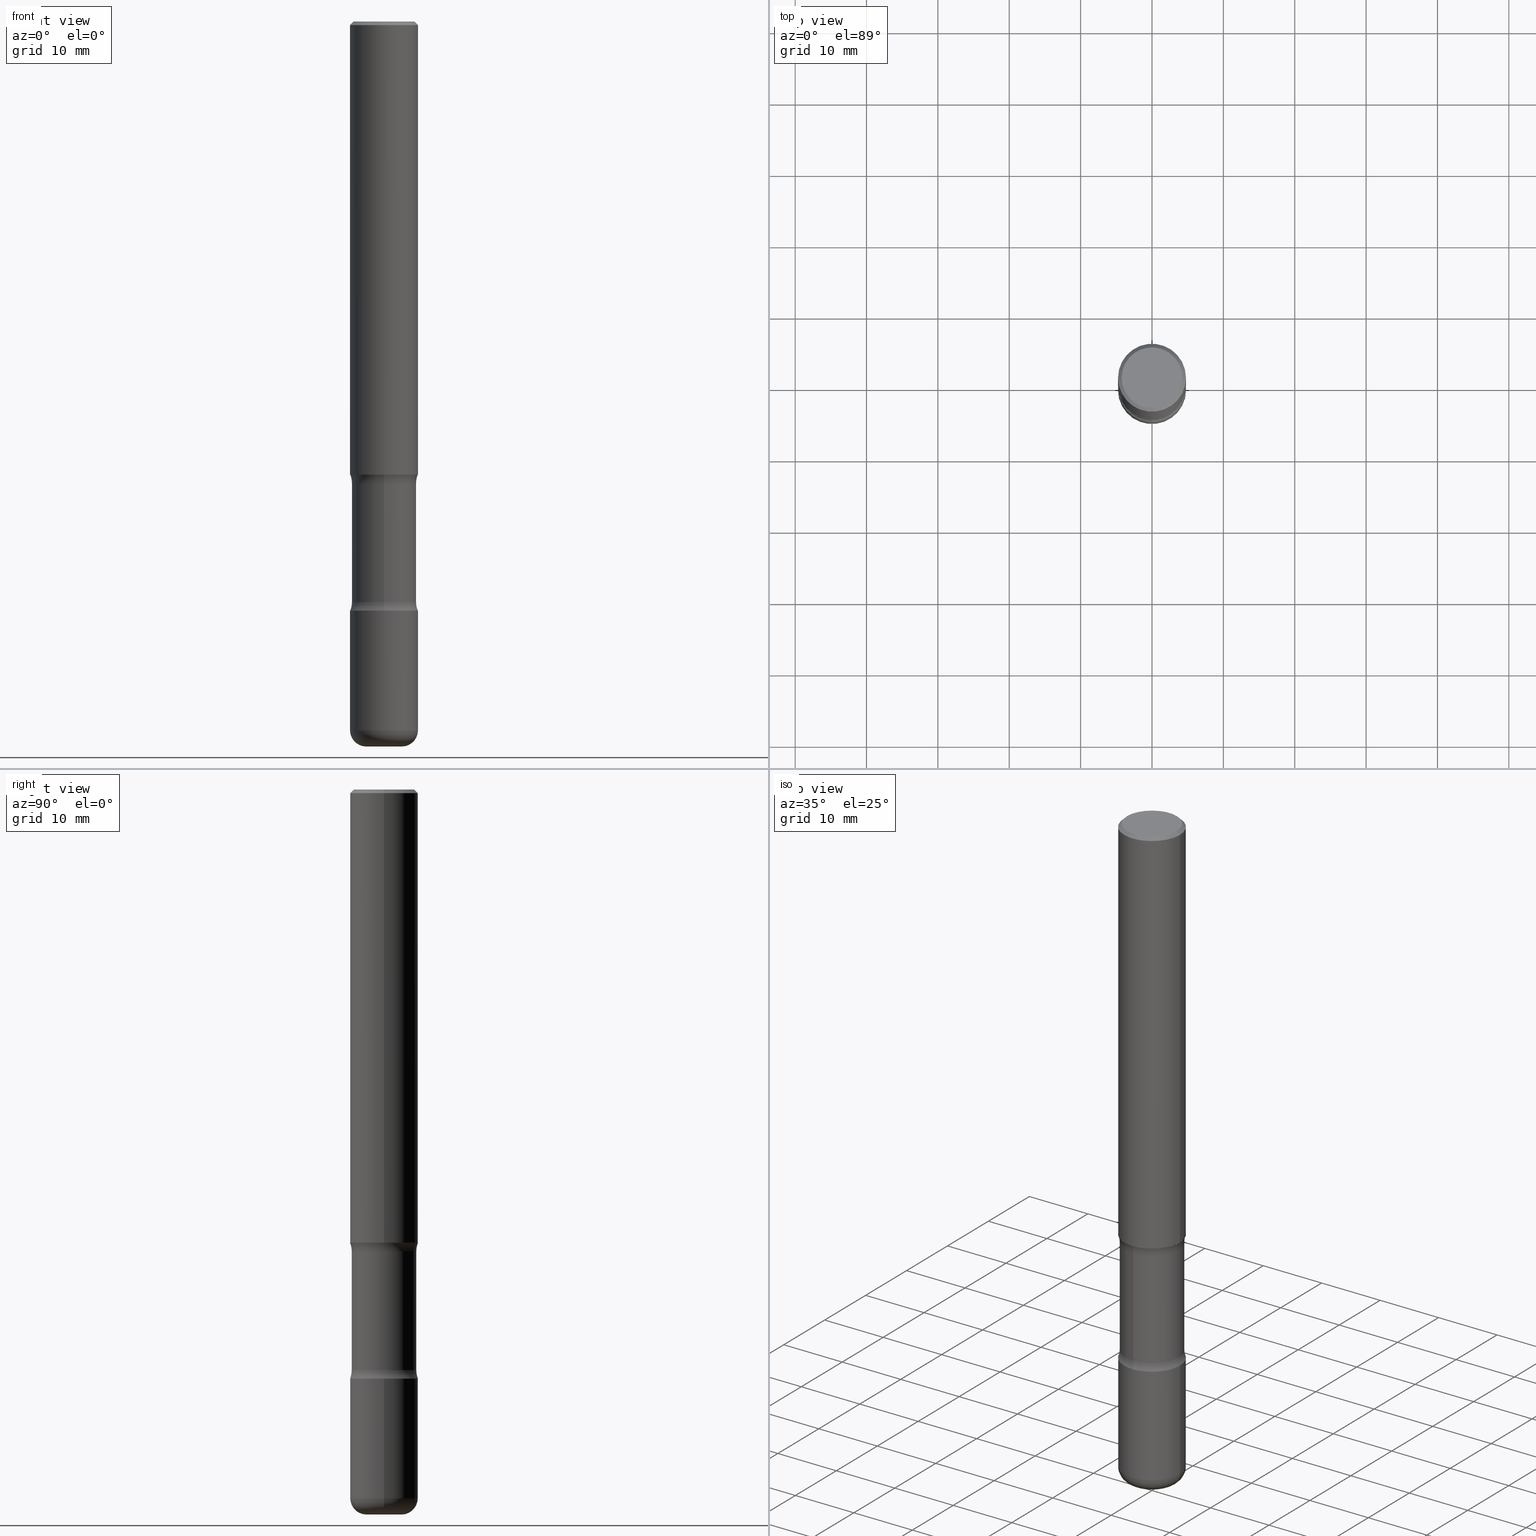
[diagram: canonical four-view strip — front | top / right | iso, engineering-drawing reading convention]
A machine part, canonical four-view strip (front | top / right | iso — engineering-drawing reading convention). The complete STEP part file that produces these views, byte-faithful:
ISO-10303-21;
HEADER;
FILE_DESCRIPTION (( 'STEP AP203' ),
    '1' );
FILE_NAME ('37853.STEP',
    '2024-03-02T00:49:22',
    ( '' ),
    ( '' ),
    'SwSTEP 2.0',
    'SolidWorks 2023',
    '' );
FILE_SCHEMA (( 'CONFIG_CONTROL_DESIGN' ));
ENDSEC;

DATA;
#1 = COORDINATED_UNIVERSAL_TIME_OFFSET ( 5, 0, .BEHIND. ) ;
#2 = DIRECTION ( 'NONE',  ( -2.445468806185136877E-29, 3.491481338843145188E-15, 1.000000000000000000 ) ) ;
#3 = FACE_OUTER_BOUND ( 'NONE', #399, .T. ) ;
#4 = EDGE_CURVE ( 'NONE', #419, #23, #536, .T. ) ;
#5 = CARTESIAN_POINT ( 'NONE',  ( -0.1874999999999999167, 1.239475875289311118E-15, -0.02000000000000006981 ) ) ;
#6 = CARTESIAN_POINT ( 'NONE',  ( 6.113672015462842613E-29, -8.728703347107864943E-15, -2.500000000000000000 ) ) ;
#7 = VECTOR ( 'NONE', #84, 39.37007874015748143 ) ;
#8 = CIRCLE ( 'NONE', #412, 0.1875000000000001110 ) ;
#9 = CYLINDRICAL_SURFACE ( 'NONE', #407, 0.1781249999999999500 ) ;
#10 = VERTEX_POINT ( 'NONE', #335 ) ;
#11 = CARTESIAN_POINT ( 'NONE',  ( -0.1875000000000000833, -1.116723556350827469E-14, -3.250000000000000444 ) ) ;
#12 = CC_DESIGN_PERSON_AND_ORGANIZATION_ASSIGNMENT ( #470, #85, ( #311 ) ) ;
#13 = CARTESIAN_POINT ( 'NONE',  ( 6.150289227201164007E-29, -9.008429421428009851E-15, -2.547495887979908780 ) ) ;
#14 = VERTEX_POINT ( 'NONE', #506 ) ;
#15 = CARTESIAN_POINT ( 'NONE',  ( -0.09750000000000015599, -1.295891286751060038E-14, -3.910000000000000142 ) ) ;
#16 = ADVANCED_FACE ( 'NONE', ( #118 ), #421, .T. ) ;
#17 = APPROVAL ( #126, 'UNSPECIFIED' ) ;
#18 = VERTEX_POINT ( 'NONE', #349 ) ;
#19 = AXIS2_PLACEMENT_3D ( 'NONE', #91, #222, #100 ) ;
#20 = TOROIDAL_SURFACE ( 'NONE', #227, 0.3031249999999999778, 0.1250000000000000278 ) ;
#21 = ORIENTED_EDGE ( 'NONE', *, *, #416, .F. ) ;
#22 = CARTESIAN_POINT ( 'NONE',  ( 6.113672015462842613E-29, -8.728703347107864943E-15, -2.500000000000000000 ) ) ;
#23 = VERTEX_POINT ( 'NONE', #447 ) ;
#24 = CARTESIAN_POINT ( 'NONE',  ( 0.1874999999999999167, -1.356173001359024677E-15, -0.02000000000000006981 ) ) ;
#25 = EDGE_LOOP ( 'NONE', ( #110, #96, #249, #454 ) ) ;
#26 = AXIS2_PLACEMENT_3D ( 'NONE', #177, #351, #524 ) ;
#27 = DIRECTION ( 'NONE',  ( 1.000000000000000000, -6.982962677686276966E-15, 0.000000000000000000 ) ) ;
#28 = CIRCLE ( 'NONE', #398, 0.1250000000000000278 ) ;
#29 = CARTESIAN_POINT ( 'NONE',  ( 1.243840226962927197E-15, 0.1781249999999909572, -2.547495887979909224 ) ) ;
#30 = VERTEX_POINT ( 'NONE', #78 ) ;
#31 = EDGE_CURVE ( 'NONE', #30, #53, #289, .T. ) ;
#32 = EDGE_CURVE ( 'NONE', #544, #59, #231, .T. ) ;
#33 = CARTESIAN_POINT ( 'NONE',  ( -2.079588455574416777E-15, -0.3031250000000111355, -3.202504112020090776 ) ) ;
#34 = CALENDAR_DATE ( 2024, 1, 3 ) ;
#35 = AXIS2_PLACEMENT_3D ( 'NONE', #394, #555, #477 ) ;
#36 = CARTESIAN_POINT ( 'NONE',  ( 0.000000000000000000, 0.000000000000000000, 0.000000000000000000 ) ) ;
#37 = APPROVAL_DATE_TIME ( #308, #17 ) ;
#38 = DIRECTION ( 'NONE',  ( 2.558681667686983511E-29, -3.329354077496592524E-15, -1.000000000000000000 ) ) ;
#39 = LINE ( 'NONE', #271, #95 ) ;
#40 = CARTESIAN_POINT ( 'NONE',  ( 0.000000000000000000, 0.000000000000000000, 0.000000000000000000 ) ) ;
#41 = DATE_AND_TIME ( #428, #513 ) ;
#42 = DIRECTION ( 'NONE',  ( 2.558681667686983511E-29, -3.329354077496592524E-15, -1.000000000000000000 ) ) ;
#43 = ADVANCED_FACE ( 'NONE', ( #56 ), #479, .F. ) ;
#44 = CALENDAR_DATE ( 2024, 1, 3 ) ;
#45 = DIRECTION ( 'NONE',  ( -2.445468806185136597E-29, 3.491481338843145583E-15, 1.000000000000000000 ) ) ;
#46 = AXIS2_PLACEMENT_3D ( 'NONE', #195, #504, #499 ) ;
#47 = APPROVAL_ROLE ( '' ) ;
#48 = DIRECTION ( 'NONE',  ( 6.982962677686266711E-15, 1.000000000000000000, -2.913971193241878794E-15 ) ) ;
#49 = DIRECTION ( 'NONE',  ( 1.000000000000000000, -6.982962677686263555E-15, 0.000000000000000000 ) ) ;
#50 = FACE_OUTER_BOUND ( 'NONE', #498, .T. ) ;
#51 = AXIS2_PLACEMENT_3D ( 'NONE', #33, #379, #547 ) ;
#52 = CIRCLE ( 'NONE', #35, 0.09750000000000016986 ) ;
#53 = VERTEX_POINT ( 'NONE', #483 ) ;
#54 = DIRECTION ( 'NONE',  ( -2.445468806185136597E-29, 3.491481338843145583E-15, 1.000000000000000000 ) ) ;
#55 = DIRECTION ( 'NONE',  ( 6.982962677686266711E-15, 1.000000000000000000, -3.067338098149349089E-15 ) ) ;
#56 = FACE_OUTER_BOUND ( 'NONE', #25, .T. ) ;
#57 = EDGE_LOOP ( 'NONE', ( #460, #542 ) ) ;
#58 = FACE_OUTER_BOUND ( 'NONE', #285, .T. ) ;
#59 = VERTEX_POINT ( 'NONE', #260 ) ;
#60 = CIRCLE ( 'NONE', #433, 0.1781249999999999223 ) ;
#61 = DIRECTION ( 'NONE',  ( -6.982962677686267499E-15, -1.000000000000000000, 0.000000000000000000 ) ) ;
#62 = DIRECTION ( 'NONE',  ( -2.445468806185136877E-29, 3.491481338843145188E-15, 1.000000000000000000 ) ) ;
#63 = ORIENTED_EDGE ( 'NONE', *, *, #276, .T. ) ;
#64 = PLANE ( 'NONE',  #224 ) ;
#65 = EDGE_LOOP ( 'NONE', ( #111, #495, #282, #287 ) ) ;
#66 = VECTOR ( 'NONE', #62, 39.37007874015748143 ) ;
#67 = AXIS2_PLACEMENT_3D ( 'NONE', #165, #83, #420 ) ;
#68 = VERTEX_POINT ( 'NONE', #440 ) ;
#69 = EDGE_CURVE ( 'NONE', #18, #14, #443, .T. ) ;
#70 = CARTESIAN_POINT ( 'NONE',  ( 4.890937612370289799E-31, -6.982962677686315028E-17, -0.02000000000000006981 ) ) ;
#71 = VERTEX_POINT ( 'NONE', #427 ) ;
#72 = VERTEX_POINT ( 'NONE', #93 ) ;
#73 = DESIGN_CONTEXT ( 'detailed design', #161, 'design' ) ;
#74 = APPLICATION_PROTOCOL_DEFINITION ( 'international standard', 'config_control_design', 1994, #161 ) ;
#75 = DIRECTION ( 'NONE',  ( 1.000000000000000000, -6.982962677686271444E-15, 4.883557194083115143E-29 ) ) ;
#76 = AXIS2_PLACEMENT_3D ( 'NONE', #70, #162, #410 ) ;
#77 = AXIS2_PLACEMENT_3D ( 'NONE', #40, #82, #119 ) ;
#78 = CARTESIAN_POINT ( 'NONE',  ( -0.1674999999999998990, 1.204561061900880061E-15, -8.301862719484106184E-30 ) ) ;
#79 = EDGE_CURVE ( 'NONE', #71, #23, #39, .T. ) ;
#80 = PERSON_AND_ORGANIZATION ( #409, #301 ) ;
#81 = CARTESIAN_POINT ( 'NONE',  ( 6.028762369336457147E-29, -8.850298793117778356E-15, -2.500000000000000000 ) ) ;
#82 = DIRECTION ( 'NONE',  ( -2.445468806185136597E-29, 3.491481338843145583E-15, 1.000000000000000000 ) ) ;
#83 = DIRECTION ( 'NONE',  ( 0.000000000000000000, 0.000000000000000000, 1.000000000000000000 ) ) ;
#84 = DIRECTION ( 'NONE',  ( 2.558681667686983511E-29, -3.329354077496592524E-15, -1.000000000000000000 ) ) ;
#85 = PERSON_AND_ORGANIZATION_ROLE ( 'classification_officer' ) ;
#86 = CARTESIAN_POINT ( 'NONE',  ( 7.831623907624765469E-29, -1.118148334468659010E-14, -3.202504112020091664 ) ) ;
#87 = AXIS2_PLACEMENT_3D ( 'NONE', #13, #352, #223 ) ;
#88 = AXIS2_PLACEMENT_3D ( 'NONE', #466, #45, #216 ) ;
#89 = DIRECTION ( 'NONE',  ( -6.982962677686267499E-15, -1.000000000000000000, 0.000000000000000000 ) ) ;
#90 = CARTESIAN_POINT ( 'NONE',  ( 9.561783032183883600E-29, -1.365169203487670064E-14, -3.910000000000000142 ) ) ;
#91 = CARTESIAN_POINT ( 'NONE',  ( 0.000000000000000000, 0.000000000000000000, 0.000000000000000000 ) ) ;
#92 = DIRECTION ( 'NONE',  ( 1.000000000000000000, -6.982962677686265922E-15, 4.876176775795935793E-29 ) ) ;
#93 = CARTESIAN_POINT ( 'NONE',  ( 0.09750000000000016986, -1.464676421644699712E-14, -4.000000000000000888 ) ) ;
#94 = CC_DESIGN_PERSON_AND_ORGANIZATION_ASSIGNMENT ( #168, #211, ( #208 ) ) ;
#95 = VECTOR ( 'NONE', #180, 39.37007874015748143 ) ;
#96 = ORIENTED_EDGE ( 'NONE', *, *, #139, .F. ) ;
#97 = APPROVAL_PERSON_ORGANIZATION ( #215, #17, #297 ) ;
#98 = FACE_OUTER_BOUND ( 'NONE', #377, .T. ) ;
#99 = EDGE_CURVE ( 'NONE', #71, #182, #557, .T. ) ;
#100 = DIRECTION ( 'NONE',  ( 1.000000000000000000, -6.982962677686265922E-15, 4.876176775795935793E-29 ) ) ;
#101 = ORIENTED_EDGE ( 'NONE', *, *, #338, .F. ) ;
#102 = CARTESIAN_POINT ( 'NONE',  ( 7.947773620101696182E-29, -1.134731435124022600E-14, -3.250000000000000444 ) ) ;
#103 = ORIENTED_EDGE ( 'NONE', *, *, #139, .T. ) ;
#104 = EDGE_CURVE ( 'NONE', #14, #18, #123, .T. ) ;
#105 = ORIENTED_EDGE ( 'NONE', *, *, #113, .F. ) ;
#106 = AXIS2_PLACEMENT_3D ( 'NONE', #170, #172, #508 ) ;
#107 = LENGTH_MEASURE_WITH_UNIT ( LENGTH_MEASURE( 0.02539999999999999897 ), #363 );
#108 = LINE ( 'NONE', #24, #546 ) ;
#109 = DIRECTION ( 'NONE',  ( 2.558681667686982950E-29, -3.329354077496592524E-15, -1.000000000000000000 ) ) ;
#110 = ORIENTED_EDGE ( 'NONE', *, *, #276, .F. ) ;
#111 = ORIENTED_EDGE ( 'NONE', *, *, #391, .T. ) ;
#112 = VECTOR ( 'NONE', #385, 39.37007874015748143 ) ;
#113 = EDGE_CURVE ( 'NONE', #59, #496, #142, .T. ) ;
#114 = CARTESIAN_POINT ( 'NONE',  ( 9.561783032183883600E-29, -1.365169203487670064E-14, -3.910000000000000142 ) ) ;
#115 = CIRCLE ( 'NONE', #248, 0.1874999999999999167 ) ;
#116 = ORIENTED_EDGE ( 'NONE', *, *, #391, .F. ) ;
#117 = CARTESIAN_POINT ( 'NONE',  ( 1.169646248512448806E-15, 0.1674999999999998990, -5.848231242562264739E-16 ) ) ;
#118 = FACE_OUTER_BOUND ( 'NONE', #190, .T. ) ;
#119 = DIRECTION ( 'NONE',  ( 1.000000000000000000, -6.982962677686266711E-15, 4.876176775795935793E-29 ) ) ;
#120 = DIRECTION ( 'NONE',  ( 1.000000000000000000, -6.982962677686265922E-15, 4.876176775795935793E-29 ) ) ;
#121 = PERSON_AND_ORGANIZATION_ROLE ( 'creator' ) ;
#122 = FACE_OUTER_BOUND ( 'NONE', #57, .T. ) ;
#123 = CIRCLE ( 'NONE', #186, 0.1875000000000001110 ) ;
#124 =( GEOMETRIC_REPRESENTATION_CONTEXT ( 3 ) GLOBAL_UNCERTAINTY_ASSIGNED_CONTEXT ( ( #200 ) ) GLOBAL_UNIT_ASSIGNED_CONTEXT ( ( #392, #554, #474 ) ) REPRESENTATION_CONTEXT ( 'NONE', 'WORKASPACE' ) );
#125 = CARTESIAN_POINT ( 'NONE',  ( 7.947773620101696182E-29, -1.134731435124022600E-14, -3.250000000000000444 ) ) ;
#126 = APPROVAL_STATUS ( 'not_yet_approved' ) ;
#127 = DIRECTION ( 'NONE',  ( -2.558681667686982950E-29, 3.329354077496592524E-15, 1.000000000000000000 ) ) ;
#128 = ADVANCED_FACE ( 'NONE', ( #529 ), #527, .T. ) ;
#129 = CALENDAR_DATE ( 2024, 1, 3 ) ;
#130 = DIRECTION ( 'NONE',  ( -2.445468806185136597E-29, 3.491481338843145583E-15, 1.000000000000000000 ) ) ;
#131 = DIRECTION ( 'NONE',  ( 1.000000000000000000, -6.982962677686263555E-15, 0.000000000000000000 ) ) ;
#132 = VECTOR ( 'NONE', #2, 39.37007874015748143 ) ;
#133 = CIRCLE ( 'NONE', #274, 0.1875000000000001388 ) ;
#134 = CARTESIAN_POINT ( 'NONE',  ( -5.870549456998649961E-29, -3.638108838031011224E-14, -4.000000000000000000 ) ) ;
#135 = DIRECTION ( 'NONE',  ( 6.982962677686266711E-15, 1.000000000000000000, -2.913971193241879583E-15 ) ) ;
#136 = DIRECTION ( 'NONE',  ( 6.982962677686266711E-15, 1.000000000000000000, -3.067338098149349089E-15 ) ) ;
#137 = APPROVAL ( #345, 'UNSPECIFIED' ) ;
#138 = ORIENTED_EDGE ( 'NONE', *, *, #286, .T. ) ;
#139 = EDGE_CURVE ( 'NONE', #182, #71, #257, .T. ) ;
#140 = DIRECTION ( 'NONE',  ( 1.000000000000000000, -6.982962677686269077E-15, 0.000000000000000000 ) ) ;
#141 = CARTESIAN_POINT ( 'NONE',  ( 6.150289227201164007E-29, -9.008429421428009851E-15, -2.547495887979908780 ) ) ;
#142 = CIRCLE ( 'NONE', #26, 0.1875000000000000833 ) ;
#143 = ORIENTED_EDGE ( 'NONE', *, *, #362, .F. ) ;
#144 = ORIENTED_EDGE ( 'NONE', *, *, #473, .T. ) ;
#145 = EDGE_CURVE ( 'NONE', #10, #68, #468, .T. ) ;
#146 = EDGE_CURVE ( 'NONE', #509, #192, #310, .T. ) ;
#147 = ORIENTED_EDGE ( 'NONE', *, *, #375, .F. ) ;
#148 = CLOSED_SHELL ( 'NONE', ( #478, #203, #516, #277, #539, #16 ) ) ;
#149 = ORIENTED_EDGE ( 'NONE', *, *, #386, .T. ) ;
#150 = AXIS2_PLACEMENT_3D ( 'NONE', #471, #127, #560 ) ;
#151 = CONICAL_SURFACE ( 'NONE', #76, 0.1874999999999999167, 0.7853981633974472798 ) ;
#152 = PRODUCT_RELATED_PRODUCT_CATEGORY ( 'detail', '', ( #198 ) ) ;
#153 = CC_DESIGN_SECURITY_CLASSIFICATION ( #311, ( #208 ) ) ;
#154 = CARTESIAN_POINT ( 'NONE',  ( 6.113672015462842613E-29, -8.728703347107864943E-15, -2.500000000000000000 ) ) ;
#155 = EDGE_LOOP ( 'NONE', ( #528, #159, #318, #442 ) ) ;
#156 = ORIENTED_EDGE ( 'NONE', *, *, #4, .T. ) ;
#157 = ADVANCED_FACE ( 'NONE', ( #279 ), #9, .T. ) ;
#158 = DIRECTION ( 'NONE',  ( -2.445468806185136597E-29, 3.491481338843145583E-15, 1.000000000000000000 ) ) ;
#159 = ORIENTED_EDGE ( 'NONE', *, *, #432, .T. ) ;
#160 = CIRCLE ( 'NONE', #537, 0.1875000000000000833 ) ;
#161 = APPLICATION_CONTEXT ( 'configuration controlled 3d designs of mechanical parts and assemblies' ) ;
#162 = DIRECTION ( 'NONE',  ( 2.445468806185136597E-29, -3.491481338843145583E-15, -1.000000000000000000 ) ) ;
#163 = CC_DESIGN_APPROVAL ( #369, ( #311 ) ) ;
#164 = EDGE_LOOP ( 'NONE', ( #228, #138, #144, #101 ) ) ;
#165 = CARTESIAN_POINT ( 'NONE',  ( 0.000000000000000000, 0.000000000000000000, 0.000000000000000000 ) ) ;
#166 = DIRECTION ( 'NONE',  ( -6.982962677686266711E-15, -1.000000000000000000, 3.491481338843145583E-15 ) ) ;
#167 = ORIENTED_EDGE ( 'NONE', *, *, #362, .T. ) ;
#168 = PERSON_AND_ORGANIZATION ( #409, #301 ) ;
#169 = CARTESIAN_POINT ( 'NONE',  ( 1.309305502066236145E-15, 0.1874999999999913125, -2.500000000000000444 ) ) ;
#170 = CARTESIAN_POINT ( 'NONE',  ( 7.826246762236988201E-29, -1.118918372292999451E-14, -3.202504112020091664 ) ) ;
#171 = CIRCLE ( 'NONE', #487, 0.1674999999999998990 ) ;
#172 = DIRECTION ( 'NONE',  ( 2.558681667686983511E-29, -3.329354077496592524E-15, -1.000000000000000000 ) ) ;
#173 = ADVANCED_FACE ( 'NONE', ( #372 ), #64, .F. ) ;
#174 = FACE_OUTER_BOUND ( 'NONE', #330, .T. ) ;
#175 = DIRECTION ( 'NONE',  ( -2.445468806185136877E-29, 3.491481338843145188E-15, 1.000000000000000000 ) ) ;
#176 = DIRECTION ( 'NONE',  ( 1.000000000000000000, -6.982962677686269077E-15, 0.000000000000000000 ) ) ;
#177 = CARTESIAN_POINT ( 'NONE',  ( 7.947773620101696182E-29, -1.134731435124022600E-14, -3.250000000000000444 ) ) ;
#178 = AXIS2_PLACEMENT_3D ( 'NONE', #307, #130, #176 ) ;
#179 = DIRECTION ( 'NONE',  ( 2.558681667686983511E-29, -3.329354077496592524E-15, -1.000000000000000000 ) ) ;
#180 = DIRECTION ( 'NONE',  ( 2.558681667686983511E-29, -3.329354077496592524E-15, -1.000000000000000000 ) ) ;
#181 = EDGE_CURVE ( 'NONE', #53, #30, #171, .T. ) ;
#182 = VERTEX_POINT ( 'NONE', #29 ) ;
#183 = DIRECTION ( 'NONE',  ( 6.982962677686266711E-15, 1.000000000000000000, -2.913971193241878794E-15 ) ) ;
#184 = DIRECTION ( 'NONE',  ( -2.445468806185136597E-29, 3.491481338843145583E-15, 1.000000000000000000 ) ) ;
#185 = ORIENTED_EDGE ( 'NONE', *, *, #401, .F. ) ;
#186 = AXIS2_PLACEMENT_3D ( 'NONE', #6, #220, #131 ) ;
#187 = ORIENTED_EDGE ( 'NONE', *, *, #476, .F. ) ;
#188 = EDGE_LOOP ( 'NONE', ( #116, #196 ) ) ;
#189 = DIRECTION ( 'NONE',  ( -1.000000000000000000, 6.982962677686265922E-15, -4.883557194083112901E-29 ) ) ;
#190 = EDGE_LOOP ( 'NONE', ( #143, #374, #532, #550 ) ) ;
#191 = FACE_OUTER_BOUND ( 'NONE', #164, .T. ) ;
#192 = VERTEX_POINT ( 'NONE', #452 ) ;
#193 = AXIS2_PLACEMENT_3D ( 'NONE', #134, #485, #356 ) ;
#194 = PRODUCT_DEFINITION_SHAPE ( 'NONE', 'NONE',  #365 ) ;
#195 = CARTESIAN_POINT ( 'NONE',  ( -2.079588455574433343E-15, -0.3031250000000089706, -2.547495887979907891 ) ) ;
#196 = ORIENTED_EDGE ( 'NONE', *, *, #432, .F. ) ;
#197 = LINE ( 'NONE', #325, #66 ) ;
#198 = PRODUCT ( '37853', '37853', '', ( #518 ) ) ;
#199 = ORIENTED_EDGE ( 'NONE', *, *, #79, .F. ) ;
#200 = UNCERTAINTY_MEASURE_WITH_UNIT (LENGTH_MEASURE( 1.000000000000000082E-05 ), #392, 'distance_accuracy_value', 'NONE');
#201 = EDGE_LOOP ( 'NONE', ( #462, #294, #411, #315 ) ) ;
#202 = FACE_OUTER_BOUND ( 'NONE', #535, .T. ) ;
#203 = ADVANCED_FACE ( 'NONE', ( #191 ), #151, .T. ) ;
#204 = EDGE_CURVE ( 'NONE', #192, #496, #197, .T. ) ;
#205 = AXIS2_PLACEMENT_3D ( 'NONE', #387, #221, #258 ) ;
#206 = APPROVAL_DATE_TIME ( #254, #369 ) ;
#207 = CARTESIAN_POINT ( 'NONE',  ( 0.000000000000000000, 0.000000000000000000, 0.000000000000000000 ) ) ;
#208 = PRODUCT_DEFINITION_FORMATION_WITH_SPECIFIED_SOURCE ( 'ANY', '', #198, .NOT_KNOWN. ) ;
#209 = DIRECTION ( 'NONE',  ( -2.445468806185136597E-29, 3.491481338843145583E-15, 1.000000000000000000 ) ) ;
#210 = DIRECTION ( 'NONE',  ( -2.445468806185136597E-29, 3.491481338843145583E-15, 1.000000000000000000 ) ) ;
#211 = PERSON_AND_ORGANIZATION_ROLE ( 'creator' ) ;
#212 = LINE ( 'NONE', #511, #132 ) ;
#213 = APPROVAL_STATUS ( 'not_yet_approved' ) ;
#214 = CARTESIAN_POINT ( 'NONE',  ( 0.1874999999999999167, -1.356173001359024677E-15, -0.02000000000000006981 ) ) ;
#215 = PERSON_AND_ORGANIZATION ( #409, #301 ) ;
#216 = DIRECTION ( 'NONE',  ( 1.000000000000000000, -6.982962677686265922E-15, 0.000000000000000000 ) ) ;
#217 = CIRCLE ( 'NONE', #46, 0.1250000000000000278 ) ;
#218 = CC_DESIGN_APPROVAL ( #17, ( #208 ) ) ;
#219 = CARTESIAN_POINT ( 'NONE',  ( 4.890937612370289799E-31, -6.982962677686315028E-17, -0.02000000000000006981 ) ) ;
#220 = DIRECTION ( 'NONE',  ( -2.445468806185136597E-29, 3.491481338843145583E-15, 1.000000000000000000 ) ) ;
#221 = DIRECTION ( 'NONE',  ( 2.558681667686983511E-29, -3.329354077496592524E-15, -1.000000000000000000 ) ) ;
#222 = DIRECTION ( 'NONE',  ( -2.445468806185136597E-29, 3.491481338843145583E-15, 1.000000000000000000 ) ) ;
#223 = DIRECTION ( 'NONE',  ( 6.982962677686266711E-15, 1.000000000000000000, -3.067338098149349089E-15 ) ) ;
#224 = AXIS2_PLACEMENT_3D ( 'NONE', #154, #109, #545 ) ;
#225 = DIRECTION ( 'NONE',  ( -2.445468806185136597E-29, 3.491481338843145583E-15, 1.000000000000000000 ) ) ;
#226 = LOCAL_TIME ( 19, 49, 22.00000000000000000, #436 ) ;
#227 = AXIS2_PLACEMENT_3D ( 'NONE', #235, #405, #439 ) ;
#228 = ORIENTED_EDGE ( 'NONE', *, *, #181, .F. ) ;
#229 = FACE_OUTER_BOUND ( 'NONE', #275, .T. ) ;
#230 = CC_DESIGN_DATE_AND_TIME_ASSIGNMENT ( #384, #559, ( #365 ) ) ;
#231 = LINE ( 'NONE', #400, #512 ) ;
#232 = ORIENTED_EDGE ( 'NONE', *, *, #145, .F. ) ;
#233 = CC_DESIGN_DATE_AND_TIME_ASSIGNMENT ( #41, #264, ( #311 ) ) ;
#234 = ORIENTED_EDGE ( 'NONE', *, *, #31, .T. ) ;
#235 = CARTESIAN_POINT ( 'NONE',  ( 6.158285255761511137E-29, -8.996978653423909512E-15, -2.547495887979908780 ) ) ;
#236 = EDGE_CURVE ( 'NONE', #496, #59, #160, .T. ) ;
#237 = DIRECTION ( 'NONE',  ( 2.558681667686983511E-29, -3.329354077496592524E-15, -1.000000000000000000 ) ) ;
#238 = AXIS2_PLACEMENT_3D ( 'NONE', #114, #334, #337 ) ;
#239 = EDGE_LOOP ( 'NONE', ( #234, #364 ) ) ;
#240 = CONICAL_SURFACE ( 'NONE', #408, 0.1874999999999999167, 0.7853981633974472798 ) ;
#241 = EDGE_LOOP ( 'NONE', ( #246, #417 ) ) ;
#242 = DIRECTION ( 'NONE',  ( -1.000000000000000000, 6.982962677686265922E-15, -4.876176775795935793E-29 ) ) ;
#243 = ORIENTED_EDGE ( 'NONE', *, *, #464, .T. ) ;
#244 = CC_DESIGN_PERSON_AND_ORGANIZATION_ASSIGNMENT ( #507, #389, ( #198 ) ) ;
#245 = DIRECTION ( 'NONE',  ( -2.445468806185136597E-29, 3.491481338843145583E-15, 1.000000000000000000 ) ) ;
#246 = ORIENTED_EDGE ( 'NONE', *, *, #113, .T. ) ;
#247 = AXIS2_PLACEMENT_3D ( 'NONE', #406, #336, #89 ) ;
#248 = AXIS2_PLACEMENT_3D ( 'NONE', #434, #210, #300 ) ;
#249 = ORIENTED_EDGE ( 'NONE', *, *, #556, .T. ) ;
#250 = ORIENTED_EDGE ( 'NONE', *, *, #104, .T. ) ;
#251 = ADVANCED_FACE ( 'NONE', ( #541 ), #543, .F. ) ;
#252 = CYLINDRICAL_SURFACE ( 'NONE', #538, 0.1875000000000001110 ) ;
#253 = MANIFOLD_SOLID_BREP ( 'Body-Move/Copy2[1]', #467 ) ;
#254 = DATE_AND_TIME ( #34, #332 ) ;
#255 = CARTESIAN_POINT ( 'NONE',  ( 7.947773620101696182E-29, -1.134731435124022600E-14, -3.250000000000000444 ) ) ;
#256 = EDGE_LOOP ( 'NONE', ( #103, #368, #185, #21 ) ) ;
#257 = CIRCLE ( 'NONE', #321, 0.1781249999999999500 ) ;
#258 = DIRECTION ( 'NONE',  ( 6.982962677686266711E-15, 1.000000000000000000, -3.329354077496592130E-15 ) ) ;
#259 = CIRCLE ( 'NONE', #381, 0.1875000000000000833 ) ;
#260 = CARTESIAN_POINT ( 'NONE',  ( 0.1875000000000000833, -1.265661985330640259E-14, -3.250000000000000444 ) ) ;
#261 = FACE_OUTER_BOUND ( 'NONE', #201, .T. ) ;
#262 = CARTESIAN_POINT ( 'NONE',  ( -1.286343374582083282E-15, -0.1875000000000114075, -3.250000000000000000 ) ) ;
#263 = EDGE_CURVE ( 'NONE', #72, #544, #530, .T. ) ;
#264 = DATE_TIME_ROLE ( 'classification_date' ) ;
#265 = DIRECTION ( 'NONE',  ( -2.445468806185136597E-29, 3.491481338843145583E-15, 1.000000000000000000 ) ) ;
#266 = VECTOR ( 'NONE', #515, 39.37007874015748143 ) ;
#267 = CC_DESIGN_APPROVAL ( #137, ( #365 ) ) ;
#268 = LINE ( 'NONE', #5, #266 ) ;
#269 = DIRECTION ( 'NONE',  ( 2.558681667686983511E-29, -3.329354077496592524E-15, -1.000000000000000000 ) ) ;
#270 = ADVANCED_FACE ( 'NONE', ( #415 ), #455, .T. ) ;
#271 = CARTESIAN_POINT ( 'NONE',  ( -1.222026205852954821E-15, -0.1781250000000138001, -3.999999999999999556 ) ) ;
#272 = DIRECTION ( 'NONE',  ( 6.982962677686266711E-15, 1.000000000000000000, -3.067338098149349089E-15 ) ) ;
#273 = AXIS2_PLACEMENT_3D ( 'NONE', #404, #184, #49 ) ;
#274 = AXIS2_PLACEMENT_3D ( 'NONE', #312, #526, #183 ) ;
#275 = EDGE_LOOP ( 'NONE', ( #457, #491, #453, #449 ) ) ;
#276 = EDGE_CURVE ( 'NONE', #71, #502, #217, .T. ) ;
#277 = ADVANCED_FACE ( 'NONE', ( #293 ), #459, .F. ) ;
#278 = ORIENTED_EDGE ( 'NONE', *, *, #32, .F. ) ;
#279 = FACE_OUTER_BOUND ( 'NONE', #256, .T. ) ;
#280 = ORIENTED_EDGE ( 'NONE', *, *, #375, .T. ) ;
#281 = AXIS2_PLACEMENT_3D ( 'NONE', #329, #166, #27 ) ;
#282 = ORIENTED_EDGE ( 'NONE', *, *, #464, .F. ) ;
#283 = AXIS2_PLACEMENT_3D ( 'NONE', #219, #431, #393 ) ;
#284 = DIRECTION ( 'NONE',  ( 1.000000000000000000, -6.982962677686265922E-15, 4.876176775795935793E-29 ) ) ;
#285 = EDGE_LOOP ( 'NONE', ( #383, #149, #327, #448 ) ) ;
#286 = EDGE_CURVE ( 'NONE', #53, #322, #108, .T. ) ;
#287 = ORIENTED_EDGE ( 'NONE', *, *, #263, .F. ) ;
#288 = DIRECTION ( 'NONE',  ( 2.438088387897960049E-29, -3.491481338843145188E-15, -1.000000000000000000 ) ) ;
#289 = CIRCLE ( 'NONE', #19, 0.1674999999999998990 ) ;
#290 = ORIENTED_EDGE ( 'NONE', *, *, #328, .F. ) ;
#291 = AXIS2_PLACEMENT_3D ( 'NONE', #36, #209, #120 ) ;
#292 = DIRECTION ( 'NONE',  ( -2.438088387897960049E-29, 3.491481338843145188E-15, 1.000000000000000000 ) ) ;
#293 = FACE_OUTER_BOUND ( 'NONE', #239, .T. ) ;
#294 = ORIENTED_EDGE ( 'NONE', *, *, #505, .F. ) ;
#295 = DIRECTION ( 'NONE',  ( 2.438088387897960049E-29, -3.491481338843145188E-15, -1.000000000000000000 ) ) ;
#296 = ORIENTED_EDGE ( 'NONE', *, *, #414, .F. ) ;
#297 = APPROVAL_ROLE ( '' ) ;
#298 = LINE ( 'NONE', #305, #7 ) ;
#299 = AXIS2_PLACEMENT_3D ( 'NONE', #81, #42, #48 ) ;
#300 = DIRECTION ( 'NONE',  ( 1.000000000000000000, -6.982962677686265922E-15, 0.000000000000000000 ) ) ;
#301 = ORGANIZATION ( 'UNSPECIFIED', 'UNSPECIFIED', '' ) ;
#302 = SECURITY_CLASSIFICATION_LEVEL ( 'unclassified' ) ;
#303 = LINE ( 'NONE', #429, #112 ) ;
#304 = APPROVAL_ROLE ( '' ) ;
#305 = CARTESIAN_POINT ( 'NONE',  ( 1.243840226962964471E-15, 0.1781249999999861278, -4.000000000000000888 ) ) ;
#306 = PERSON_AND_ORGANIZATION_ROLE ( 'design_supplier' ) ;
#307 = CARTESIAN_POINT ( 'NONE',  ( 9.561783032183883600E-29, -1.365169203487670064E-14, -3.910000000000000142 ) ) ;
#308 = DATE_AND_TIME ( #44, #226 ) ;
#309 = DIRECTION ( 'NONE',  ( 6.982962677686266711E-15, 1.000000000000000000, -3.329354077496592130E-15 ) ) ;
#310 = CIRCLE ( 'NONE', #341, 0.09000000000000016320 ) ;
#311 = SECURITY_CLASSIFICATION ( '', '', #302 ) ;
#312 = CARTESIAN_POINT ( 'NONE',  ( 6.028762369336457147E-29, -8.850298793117778356E-15, -2.500000000000000000 ) ) ;
#313 = DIRECTION ( 'NONE',  ( 6.982962677686266711E-15, 1.000000000000000000, -3.329354077496592130E-15 ) ) ;
#314 = CARTESIAN_POINT ( 'NONE',  ( -0.09750000000000016986, -1.279628529666649585E-14, -4.000000000000000888 ) ) ;
#315 = ORIENTED_EDGE ( 'NONE', *, *, #401, .T. ) ;
#316 = DIRECTION ( 'NONE',  ( 2.445468806185136597E-29, -3.491481338843145583E-15, -1.000000000000000000 ) ) ;
#317 = EDGE_CURVE ( 'NONE', #14, #322, #303, .T. ) ;
#318 = ORIENTED_EDGE ( 'NONE', *, *, #263, .T. ) ;
#319 = ORIENTED_EDGE ( 'NONE', *, *, #556, .F. ) ;
#320 = VERTEX_POINT ( 'NONE', #169 ) ;
#321 = AXIS2_PLACEMENT_3D ( 'NONE', #141, #489, #136 ) ;
#322 = VERTEX_POINT ( 'NONE', #214 ) ;
#323 = DIRECTION ( 'NONE',  ( 0.7071067811865467956, -7.319954787623254468E-15, -0.7071067811865482389 ) ) ;
#324 = ORIENTED_EDGE ( 'NONE', *, *, #99, .T. ) ;
#325 = CARTESIAN_POINT ( 'NONE',  ( -0.1875000000000001110, 1.332267629550188637E-15, -9.223003294227953596E-30 ) ) ;
#326 = CC_DESIGN_PERSON_AND_ORGANIZATION_ASSIGNMENT ( #551, #306, ( #208 ) ) ;
#327 = ORIENTED_EDGE ( 'NONE', *, *, #32, .T. ) ;
#328 = EDGE_CURVE ( 'NONE', #23, #68, #60, .T. ) ;
#329 = CARTESIAN_POINT ( 'NONE',  ( 0.09750000000000015599, -1.433253089595111070E-14, -3.910000000000000142 ) ) ;
#330 = EDGE_LOOP ( 'NONE', ( #199, #324, #339, #290 ) ) ;
#331 = CIRCLE ( 'NONE', #299, 0.1875000000000001388 ) ;
#332 = LOCAL_TIME ( 19, 49, 22.00000000000000000, #1 ) ;
#333 = ADVANCED_FACE ( 'NONE', ( #519 ), #397, .F. ) ;
#334 = DIRECTION ( 'NONE',  ( -2.445468806185136597E-29, 3.491481338843145583E-15, 1.000000000000000000 ) ) ;
#335 = CARTESIAN_POINT ( 'NONE',  ( 1.309305502066255275E-15, 0.1874999999999887867, -3.250000000000001332 ) ) ;
#336 = DIRECTION ( 'NONE',  ( -1.000000000000000000, 6.982962677686265922E-15, -4.883557194083112901E-29 ) ) ;
#337 = DIRECTION ( 'NONE',  ( 1.000000000000000000, -6.982962677686271444E-15, 4.883557194083115143E-29 ) ) ;
#338 = EDGE_CURVE ( 'NONE', #30, #360, #268, .T. ) ;
#339 = ORIENTED_EDGE ( 'NONE', *, *, #416, .T. ) ;
#340 = DIRECTION ( 'NONE',  ( 6.982962677686265133E-15, 1.000000000000000000, -3.067338098149349483E-15 ) ) ;
#341 = AXIS2_PLACEMENT_3D ( 'NONE', #15, #463, #553 ) ;
#342 = LOCAL_TIME ( 19, 49, 22.00000000000000000, #520 ) ;
#343 = COORDINATED_UNIVERSAL_TIME_OFFSET ( 5, 0, .BEHIND. ) ;
#344 = FACE_OUTER_BOUND ( 'NONE', #65, .T. ) ;
#345 = APPROVAL_STATUS ( 'not_yet_approved' ) ;
#346 = PLANE ( 'NONE',  #150 ) ;
#347 = PERSON_AND_ORGANIZATION ( #409, #301 ) ;
#348 = CYLINDRICAL_SURFACE ( 'NONE', #435, 0.1781249999999999500 ) ;
#349 = CARTESIAN_POINT ( 'NONE',  ( -0.1875000000000000833, -3.066998857392172722E-15, -2.500000000000000000 ) ) ;
#350 = CIRCLE ( 'NONE', #106, 0.1781249999999999223 ) ;
#351 = DIRECTION ( 'NONE',  ( -2.445468806185136597E-29, 3.491481338843145583E-15, 1.000000000000000000 ) ) ;
#352 = DIRECTION ( 'NONE',  ( 2.558681667686983511E-29, -3.329354077496592524E-15, -1.000000000000000000 ) ) ;
#353 = DIRECTION ( 'NONE',  ( 1.000000000000000000, -6.982962677686266711E-15, 4.876176775795935793E-29 ) ) ;
#354 = CARTESIAN_POINT ( 'NONE',  ( 4.890937612370289799E-31, -6.982962677686315028E-17, -0.02000000000000006981 ) ) ;
#355 = APPLICATION_CONTEXT ( 'configuration controlled 3d designs of mechanical parts and assemblies' ) ;
#356 = DIRECTION ( 'NONE',  ( -1.000000000000000000, 6.982962677686265922E-15, -4.876176775795935793E-29 ) ) ;
#357 = ADVANCED_FACE ( 'NONE', ( #344 ), #469, .T. ) ;
#358 = DIRECTION ( 'NONE',  ( -2.445468806185136597E-29, 3.491481338843145583E-15, 1.000000000000000000 ) ) ;
#359 = AXIS2_PLACEMENT_3D ( 'NONE', #117, #295, #461 ) ;
#360 = VERTEX_POINT ( 'NONE', #475 ) ;
#361 = ORIENTED_EDGE ( 'NONE', *, *, #99, .F. ) ;
#362 = EDGE_CURVE ( 'NONE', #18, #360, #212, .T. ) ;
#363 =( LENGTH_UNIT ( ) NAMED_UNIT ( * ) SI_UNIT ( $, .METRE. ) );
#364 = ORIENTED_EDGE ( 'NONE', *, *, #181, .T. ) ;
#365 = PRODUCT_DEFINITION ( 'UNKNOWN', '', #208, #73 ) ;
#366 = CIRCLE ( 'NONE', #424, 0.1875000000000000833 ) ;
#367 = CIRCLE ( 'NONE', #283, 0.1874999999999999167 ) ;
#368 = ORIENTED_EDGE ( 'NONE', *, *, #79, .T. ) ;
#369 = APPROVAL ( #213, 'UNSPECIFIED' ) ;
#370 = CC_DESIGN_PERSON_AND_ORGANIZATION_ASSIGNMENT ( #347, #121, ( #365 ) ) ;
#371 = CARTESIAN_POINT ( 'NONE',  ( 0.1875000000000002220, -1.496099753694287723E-14, -3.910000000000000142 ) ) ;
#372 = FACE_OUTER_BOUND ( 'NONE', #451, .T. ) ;
#373 = ADVANCED_FACE ( 'NONE', ( #122 ), #346, .F. ) ;
#374 = ORIENTED_EDGE ( 'NONE', *, *, #69, .T. ) ;
#375 = EDGE_CURVE ( 'NONE', #502, #320, #331, .T. ) ;
#376 = DIRECTION ( 'NONE',  ( 1.000000000000000000, -6.982962677686269866E-15, 0.000000000000000000 ) ) ;
#377 = EDGE_LOOP ( 'NONE', ( #361, #63, #280, #319 ) ) ;
#378 = ADVANCED_FACE ( 'NONE', ( #261 ), #450, .F. ) ;
#379 = DIRECTION ( 'NONE',  ( 1.000000000000000000, -6.860497997771530774E-15, 4.842784365940769113E-29 ) ) ;
#380 = AXIS2_PLACEMENT_3D ( 'NONE', #90, #265, #75 ) ;
#381 = AXIS2_PLACEMENT_3D ( 'NONE', #102, #179, #135 ) ;
#382 = CALENDAR_DATE ( 2024, 1, 3 ) ;
#383 = ORIENTED_EDGE ( 'NONE', *, *, #204, .F. ) ;
#384 = DATE_AND_TIME ( #129, #342 ) ;
#385 = DIRECTION ( 'NONE',  ( -2.445468806185136877E-29, 3.491481338843145188E-15, 1.000000000000000000 ) ) ;
#386 = EDGE_CURVE ( 'NONE', #192, #544, #523, .T. ) ;
#387 = CARTESIAN_POINT ( 'NONE',  ( 7.831623907624765469E-29, -1.118148334468659010E-14, -3.202504112020091664 ) ) ;
#388 = AXIS2_PLACEMENT_3D ( 'NONE', #497, #288, #242 ) ;
#389 = PERSON_AND_ORGANIZATION_ROLE ( 'design_owner' ) ;
#390 = DIRECTION ( 'NONE',  ( 2.558681667686983511E-29, -3.329354077496592524E-15, -1.000000000000000000 ) ) ;
#391 = EDGE_CURVE ( 'NONE', #72, #509, #52, .T. ) ;
#392 =( CONVERSION_BASED_UNIT ( 'INCH', #107 ) LENGTH_UNIT ( ) NAMED_UNIT ( #438 ) );
#393 = DIRECTION ( 'NONE',  ( 1.000000000000000000, -6.982962677686265922E-15, 0.000000000000000000 ) ) ;
#394 = CARTESIAN_POINT ( 'NONE',  ( 9.781875224740547508E-29, -1.396592535537258391E-14, -4.000000000000000888 ) ) ;
#395 = CARTESIAN_POINT ( 'NONE',  ( -1.286343374582102609E-15, -0.1875000000000089651, -2.499999999999999556 ) ) ;
#396 = CLOSED_SHELL ( 'NONE', ( #157, #333, #517, #43, #173, #373, #378, #444 ) ) ;
#397 = TOROIDAL_SURFACE ( 'NONE', #500, 0.3031249999999999778, 0.1250000000000000278 ) ;
#398 = AXIS2_PLACEMENT_3D ( 'NONE', #458, #189, #61 ) ;
#399 = EDGE_LOOP ( 'NONE', ( #250, #167, #446, #402 ) ) ;
#400 = CARTESIAN_POINT ( 'NONE',  ( 0.1875000000000001110, -1.309305502066175797E-15, 9.142831454617385217E-30 ) ) ;
#401 = EDGE_CURVE ( 'NONE', #68, #23, #350, .T. ) ;
#402 = ORIENTED_EDGE ( 'NONE', *, *, #317, .F. ) ;
#403 = CARTESIAN_POINT ( 'NONE',  ( 9.866784870866931853E-29, -1.384432990936266734E-14, -4.000000000000000000 ) ) ;
#404 = CARTESIAN_POINT ( 'NONE',  ( 6.113672015462842613E-29, -8.728703347107864943E-15, -2.500000000000000000 ) ) ;
#405 = DIRECTION ( 'NONE',  ( 2.558681667686983511E-29, -3.329354077496592524E-15, -1.000000000000000000 ) ) ;
#406 = CARTESIAN_POINT ( 'NONE',  ( 2.116710561673727694E-15, 0.3031249999999888201, -3.202504112020092997 ) ) ;
#407 = AXIS2_PLACEMENT_3D ( 'NONE', #403, #237, #55 ) ;
#408 = AXIS2_PLACEMENT_3D ( 'NONE', #354, #316, #486 ) ;
#409 = PERSON ( 'UNSPECIFIED', 'UNSPECIFIED', 'UNSPECIFIED', ('UNSPECIFIED'), ('UNSPECIFIED'), ('UNSPECIFIED') ) ;
#410 = DIRECTION ( 'NONE',  ( -1.000000000000000000, 6.982962677686265922E-15, 0.000000000000000000 ) ) ;
#411 = ORIENTED_EDGE ( 'NONE', *, *, #145, .T. ) ;
#412 = AXIS2_PLACEMENT_3D ( 'NONE', #492, #54, #140 ) ;
#413 = ORIENTED_EDGE ( 'NONE', *, *, #69, .F. ) ;
#414 = EDGE_CURVE ( 'NONE', #419, #10, #366, .T. ) ;
#415 = FACE_OUTER_BOUND ( 'NONE', #155, .T. ) ;
#416 = EDGE_CURVE ( 'NONE', #182, #68, #298, .T. ) ;
#417 = ORIENTED_EDGE ( 'NONE', *, *, #236, .T. ) ;
#418 = DIRECTION ( 'NONE',  ( 1.000000000000000000, -6.982962677686265922E-15, 4.876176775795935793E-29 ) ) ;
#419 = VERTEX_POINT ( 'NONE', #262 ) ;
#420 = DIRECTION ( 'NONE',  ( 1.000000000000000000, 0.000000000000000000, 0.000000000000000000 ) ) ;
#421 = CYLINDRICAL_SURFACE ( 'NONE', #291, 0.1875000000000000278 ) ;
#422 = CARTESIAN_POINT ( 'NONE',  ( 0.000000000000000000, 0.000000000000000000, 0.000000000000000000 ) ) ;
#423 = MANIFOLD_SOLID_BREP ( 'Body-Move/Copy2[2]', #148 ) ;
#424 = AXIS2_PLACEMENT_3D ( 'NONE', #125, #390, #437 ) ;
#425 = EDGE_CURVE ( 'NONE', #360, #322, #367, .T. ) ;
#426 = CARTESIAN_POINT ( 'NONE',  ( 7.826246762236988201E-29, -1.118918372292999451E-14, -3.202504112020091664 ) ) ;
#427 = CARTESIAN_POINT ( 'NONE',  ( -1.254184790217547253E-15, -0.1781250000000089706, -2.547495887979908336 ) ) ;
#428 = CALENDAR_DATE ( 2024, 1, 3 ) ;
#429 = CARTESIAN_POINT ( 'NONE',  ( 0.1875000000000000278, -1.309305502066175008E-15, 9.142831454617381013E-30 ) ) ;
#430 = PERSON_AND_ORGANIZATION ( #409, #301 ) ;
#431 = DIRECTION ( 'NONE',  ( -2.445468806185136597E-29, 3.491481338843145583E-15, 1.000000000000000000 ) ) ;
#432 = EDGE_CURVE ( 'NONE', #509, #72, #480, .T. ) ;
#433 = AXIS2_PLACEMENT_3D ( 'NONE', #426, #552, #340 ) ;
#434 = CARTESIAN_POINT ( 'NONE',  ( 4.890937612370289799E-31, -6.982962677686315028E-17, -0.02000000000000006981 ) ) ;
#435 = AXIS2_PLACEMENT_3D ( 'NONE', #521, #482, #272 ) ;
#436 = COORDINATED_UNIVERSAL_TIME_OFFSET ( 5, 0, .BEHIND. ) ;
#437 = DIRECTION ( 'NONE',  ( 6.982962677686266711E-15, 1.000000000000000000, -2.913971193241879583E-15 ) ) ;
#438 = DIMENSIONAL_EXPONENTS ( 1.000000000000000000, 0.000000000000000000, 0.000000000000000000, 0.000000000000000000, 0.000000000000000000, 0.000000000000000000, 0.000000000000000000 ) ;
#439 = DIRECTION ( 'NONE',  ( 6.982962677686266711E-15, 1.000000000000000000, -3.329354077496592130E-15 ) ) ;
#440 = CARTESIAN_POINT ( 'NONE',  ( 1.243840226962943961E-15, 0.1781249999999887368, -3.202504112020092553 ) ) ;
#441 = MANIFOLD_SOLID_BREP ( 'Body-Move/Copy2[4]', #396 ) ;
#442 = ORIENTED_EDGE ( 'NONE', *, *, #386, .F. ) ;
#443 = CIRCLE ( 'NONE', #273, 0.1875000000000001110 ) ;
#444 = ADVANCED_FACE ( 'NONE', ( #174 ), #348, .T. ) ;
#445 = AXIS2_PLACEMENT_3D ( 'NONE', #484, #358, #92 ) ;
#446 = ORIENTED_EDGE ( 'NONE', *, *, #473, .F. ) ;
#447 = CARTESIAN_POINT ( 'NONE',  ( -1.254184790217529307E-15, -0.1781250000000111355, -3.202504112020091220 ) ) ;
#448 = ORIENTED_EDGE ( 'NONE', *, *, #236, .F. ) ;
#449 = ORIENTED_EDGE ( 'NONE', *, *, #425, .T. ) ;
#450 = TOROIDAL_SURFACE ( 'NONE', #205, 0.3031249999999999778, 0.1250000000000000278 ) ;
#451 = EDGE_LOOP ( 'NONE', ( #187, #147 ) ) ;
#452 = CARTESIAN_POINT ( 'NONE',  ( -0.1875000000000002220, -1.231942440532651122E-14, -3.910000000000000142 ) ) ;
#453 = ORIENTED_EDGE ( 'NONE', *, *, #338, .T. ) ;
#454 = ORIENTED_EDGE ( 'NONE', *, *, #476, .T. ) ;
#455 = TOROIDAL_SURFACE ( 'NONE', #238, 0.09750000000000015599, 0.09000000000000017708 ) ;
#456 = AXIS2_PLACEMENT_3D ( 'NONE', #22, #292, #418 ) ;
#457 = ORIENTED_EDGE ( 'NONE', *, *, #286, .F. ) ;
#458 = CARTESIAN_POINT ( 'NONE',  ( 2.116710561673711128E-15, 0.3031249999999910405, -2.547495887979910112 ) ) ;
#459 = PLANE ( 'NONE',  #359 ) ;
#460 = ORIENTED_EDGE ( 'NONE', *, *, #505, .T. ) ;
#461 = DIRECTION ( 'NONE',  ( -1.000000000000000000, 6.982962677686265922E-15, -4.876176775795935793E-29 ) ) ;
#462 = ORIENTED_EDGE ( 'NONE', *, *, #4, .F. ) ;
#463 = DIRECTION ( 'NONE',  ( 7.105427357601001859E-15, 1.000000000000000000, -3.491481338843145583E-15 ) ) ;
#464 = EDGE_CURVE ( 'NONE', #544, #192, #8, .T. ) ;
#465 = DATE_AND_TIME ( #382, #501 ) ;
#466 = CARTESIAN_POINT ( 'NONE',  ( 9.781875224740547508E-29, -1.396592535537258391E-14, -4.000000000000000888 ) ) ;
#467 = CLOSED_SHELL ( 'NONE', ( #531, #357, #128, #270, #525, #251 ) ) ;
#468 = CIRCLE ( 'NONE', #247, 0.1250000000000000278 ) ;
#469 = TOROIDAL_SURFACE ( 'NONE', #380, 0.09750000000000015599, 0.09000000000000017708 ) ;
#470 = PERSON_AND_ORGANIZATION ( #409, #301 ) ;
#471 = CARTESIAN_POINT ( 'NONE',  ( 7.947773620101696182E-29, -1.134731435124022600E-14, -3.250000000000000444 ) ) ;
#472 = ADVANCED_BREP_SHAPE_REPRESENTATION ( '37853', ( #253, #423, #441, #67 ), #124 ) ;
#473 = EDGE_CURVE ( 'NONE', #322, #360, #115, .T. ) ;
#474 =( NAMED_UNIT ( * ) SI_UNIT ( $, .STERADIAN. ) SOLID_ANGLE_UNIT ( ) );
#475 = CARTESIAN_POINT ( 'NONE',  ( -0.1874999999999999167, 1.239475875289311118E-15, -0.02000000000000006981 ) ) ;
#476 = EDGE_CURVE ( 'NONE', #320, #502, #133, .T. ) ;
#477 = DIRECTION ( 'NONE',  ( 1.000000000000000000, -6.982962677686265922E-15, 0.000000000000000000 ) ) ;
#478 = ADVANCED_FACE ( 'NONE', ( #3 ), #533, .T. ) ;
#479 = TOROIDAL_SURFACE ( 'NONE', #494, 0.3031249999999999778, 0.1250000000000000278 ) ;
#480 = CIRCLE ( 'NONE', #88, 0.09750000000000016986 ) ;
#481 = COORDINATED_UNIVERSAL_TIME_OFFSET ( 5, 0, .BEHIND. ) ;
#482 = DIRECTION ( 'NONE',  ( 2.558681667686983511E-29, -3.329354077496592524E-15, -1.000000000000000000 ) ) ;
#483 = CARTESIAN_POINT ( 'NONE',  ( 0.1674999999999998990, -1.252653207992877500E-15, 8.469775550109235181E-30 ) ) ;
#484 = CARTESIAN_POINT ( 'NONE',  ( 0.000000000000000000, 0.000000000000000000, 0.000000000000000000 ) ) ;
#485 = DIRECTION ( 'NONE',  ( 2.438088387897960049E-29, -3.491481338843145188E-15, -1.000000000000000000 ) ) ;
#486 = DIRECTION ( 'NONE',  ( -1.000000000000000000, 6.982962677686265922E-15, 0.000000000000000000 ) ) ;
#487 = AXIS2_PLACEMENT_3D ( 'NONE', #207, #158, #284 ) ;
#488 = APPROVAL_PERSON_ORGANIZATION ( #80, #369, #47 ) ;
#489 = DIRECTION ( 'NONE',  ( 2.558681667686983511E-29, -3.329354077496592524E-15, -1.000000000000000000 ) ) ;
#490 = ORIENTED_EDGE ( 'NONE', *, *, #328, .T. ) ;
#491 = ORIENTED_EDGE ( 'NONE', *, *, #31, .F. ) ;
#492 = CARTESIAN_POINT ( 'NONE',  ( 9.561783032183883600E-29, -1.365169203487670064E-14, -3.910000000000000142 ) ) ;
#493 = EDGE_LOOP ( 'NONE', ( #296, #156, #490, #232 ) ) ;
#494 = AXIS2_PLACEMENT_3D ( 'NONE', #522, #269, #313 ) ;
#495 = ORIENTED_EDGE ( 'NONE', *, *, #146, .T. ) ;
#496 = VERTEX_POINT ( 'NONE', #11 ) ;
#497 = CARTESIAN_POINT ( 'NONE',  ( 7.947773620101696182E-29, -1.134731435124022600E-14, -3.250000000000000444 ) ) ;
#498 = EDGE_LOOP ( 'NONE', ( #243, #534, #105, #278 ) ) ;
#499 = DIRECTION ( 'NONE',  ( 6.860497997771532351E-15, 1.000000000000000000, 0.000000000000000000 ) ) ;
#500 = AXIS2_PLACEMENT_3D ( 'NONE', #86, #38, #309 ) ;
#501 = LOCAL_TIME ( 19, 49, 22.00000000000000000, #343 ) ;
#502 = VERTEX_POINT ( 'NONE', #395 ) ;
#503 = CYLINDRICAL_SURFACE ( 'NONE', #77, 0.1875000000000001110 ) ;
#504 = DIRECTION ( 'NONE',  ( 1.000000000000000000, -6.860497997771530774E-15, 4.842784365940769113E-29 ) ) ;
#505 = EDGE_CURVE ( 'NONE', #10, #419, #259, .T. ) ;
#506 = CARTESIAN_POINT ( 'NONE',  ( 0.1875000000000001110, -1.003800884917403995E-14, -2.500000000000000000 ) ) ;
#507 = PERSON_AND_ORGANIZATION ( #409, #301 ) ;
#508 = DIRECTION ( 'NONE',  ( 6.982962677686265133E-15, 1.000000000000000000, -3.067338098149349483E-15 ) ) ;
#509 = VERTEX_POINT ( 'NONE', #314 ) ;
#510 = APPLICATION_PROTOCOL_DEFINITION ( 'international standard', 'config_control_design', 1994, #355 ) ;
#511 = CARTESIAN_POINT ( 'NONE',  ( -0.1875000000000000278, 1.332267629550188046E-15, -9.223003294227947991E-30 ) ) ;
#512 = VECTOR ( 'NONE', #175, 39.37007874015748143 ) ;
#513 = LOCAL_TIME ( 19, 49, 22.00000000000000000, #481 ) ;
#514 = APPROVAL_DATE_TIME ( #465, #137 ) ;
#515 = DIRECTION ( 'NONE',  ( -0.7071067811865467956, 2.468850131082249172E-15, -0.7071067811865482389 ) ) ;
#516 = ADVANCED_FACE ( 'NONE', ( #229 ), #240, .T. ) ;
#517 = ADVANCED_FACE ( 'NONE', ( #98 ), #20, .F. ) ;
#518 = MECHANICAL_CONTEXT ( 'NONE', #355, 'mechanical' ) ;
#519 = FACE_OUTER_BOUND ( 'NONE', #493, .T. ) ;
#520 = COORDINATED_UNIVERSAL_TIME_OFFSET ( 5, 0, .BEHIND. ) ;
#521 = CARTESIAN_POINT ( 'NONE',  ( 9.866784870866931853E-29, -1.384432990936266734E-14, -4.000000000000000000 ) ) ;
#522 = CARTESIAN_POINT ( 'NONE',  ( 6.158285255761511137E-29, -8.996978653423909512E-15, -2.547495887979908780 ) ) ;
#523 = CIRCLE ( 'NONE', #178, 0.1875000000000001110 ) ;
#524 = DIRECTION ( 'NONE',  ( 1.000000000000000000, -6.982962677686269866E-15, 0.000000000000000000 ) ) ;
#525 = ADVANCED_FACE ( 'NONE', ( #58 ), #503, .T. ) ;
#526 = DIRECTION ( 'NONE',  ( 2.558681667686983511E-29, -3.329354077496592524E-15, -1.000000000000000000 ) ) ;
#527 = PLANE ( 'NONE',  #193 ) ;
#528 = ORIENTED_EDGE ( 'NONE', *, *, #146, .F. ) ;
#529 = FACE_OUTER_BOUND ( 'NONE', #188, .T. ) ;
#530 = CIRCLE ( 'NONE', #281, 0.09000000000000016320 ) ;
#531 = ADVANCED_FACE ( 'NONE', ( #50 ), #252, .T. ) ;
#532 = ORIENTED_EDGE ( 'NONE', *, *, #317, .T. ) ;
#533 = CYLINDRICAL_SURFACE ( 'NONE', #445, 0.1875000000000000278 ) ;
#534 = ORIENTED_EDGE ( 'NONE', *, *, #204, .T. ) ;
#535 = EDGE_LOOP ( 'NONE', ( #540, #413 ) ) ;
#536 = CIRCLE ( 'NONE', #51, 0.1250000000000000278 ) ;
#537 = AXIS2_PLACEMENT_3D ( 'NONE', #255, #245, #376 ) ;
#538 = AXIS2_PLACEMENT_3D ( 'NONE', #422, #225, #353 ) ;
#539 = ADVANCED_FACE ( 'NONE', ( #202 ), #548, .F. ) ;
#540 = ORIENTED_EDGE ( 'NONE', *, *, #104, .F. ) ;
#541 = FACE_OUTER_BOUND ( 'NONE', #241, .T. ) ;
#542 = ORIENTED_EDGE ( 'NONE', *, *, #414, .T. ) ;
#543 = PLANE ( 'NONE',  #388 ) ;
#544 = VERTEX_POINT ( 'NONE', #371 ) ;
#545 = DIRECTION ( 'NONE',  ( 6.982962677686265922E-15, 1.000000000000000000, -3.329354077496592524E-15 ) ) ;
#546 = VECTOR ( 'NONE', #323, 39.37007874015748143 ) ;
#547 = DIRECTION ( 'NONE',  ( 6.860497997771529985E-15, 1.000000000000000000, 0.000000000000000000 ) ) ;
#548 = PLANE ( 'NONE',  #456 ) ;
#549 = SHAPE_DEFINITION_REPRESENTATION ( #194, #472 ) ;
#550 = ORIENTED_EDGE ( 'NONE', *, *, #425, .F. ) ;
#551 = PERSON_AND_ORGANIZATION ( #409, #301 ) ;
#552 = DIRECTION ( 'NONE',  ( 2.558681667686983511E-29, -3.329354077496592524E-15, -1.000000000000000000 ) ) ;
#553 = DIRECTION ( 'NONE',  ( -1.000000000000000000, 7.105427357600999492E-15, 0.000000000000000000 ) ) ;
#554 =( NAMED_UNIT ( * ) PLANE_ANGLE_UNIT ( ) SI_UNIT ( $, .RADIAN. ) );
#555 = DIRECTION ( 'NONE',  ( -2.445468806185136597E-29, 3.491481338843145583E-15, 1.000000000000000000 ) ) ;
#556 = EDGE_CURVE ( 'NONE', #182, #320, #28, .T. ) ;
#557 = CIRCLE ( 'NONE', #87, 0.1781249999999999500 ) ;
#558 = APPROVAL_PERSON_ORGANIZATION ( #430, #137, #304 ) ;
#559 = DATE_TIME_ROLE ( 'creation_date' ) ;
#560 = DIRECTION ( 'NONE',  ( -6.982962677686265922E-15, -1.000000000000000000, 3.329354077496592524E-15 ) ) ;
ENDSEC;
END-ISO-10303-21;
